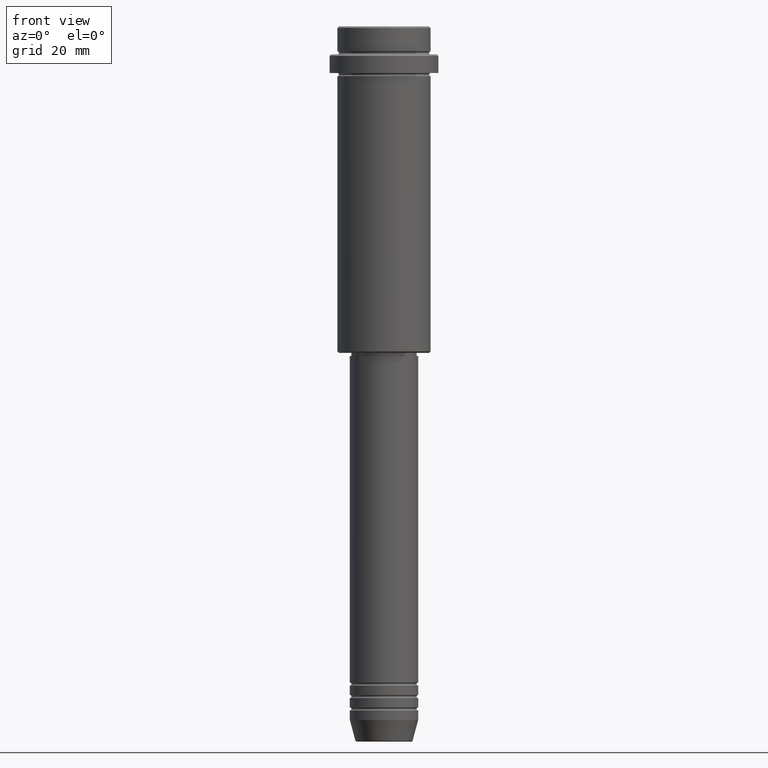
[diagram: clean part render]
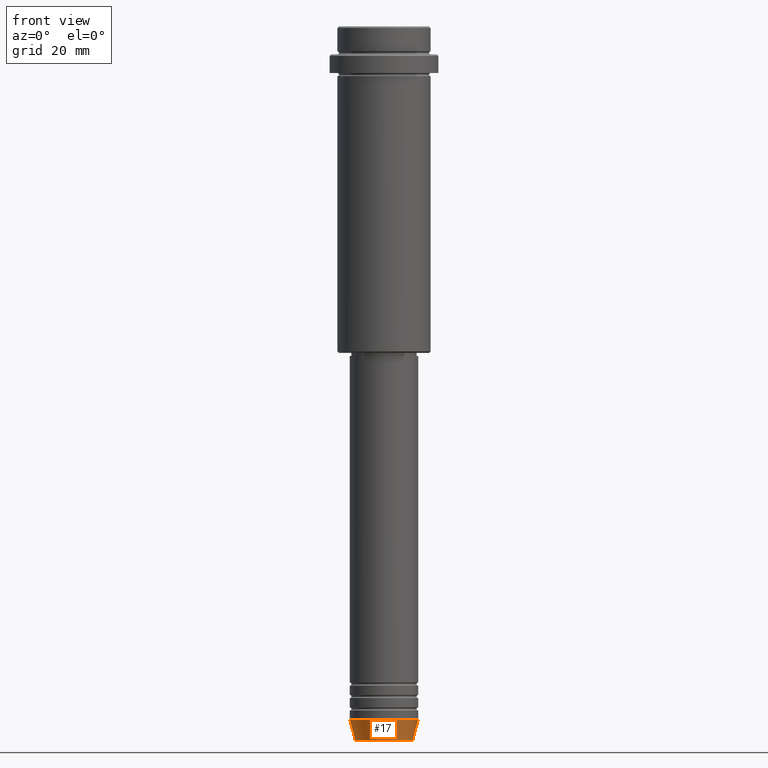
[diagram: same view with one face highlighted and labeled with its STEP entity id]
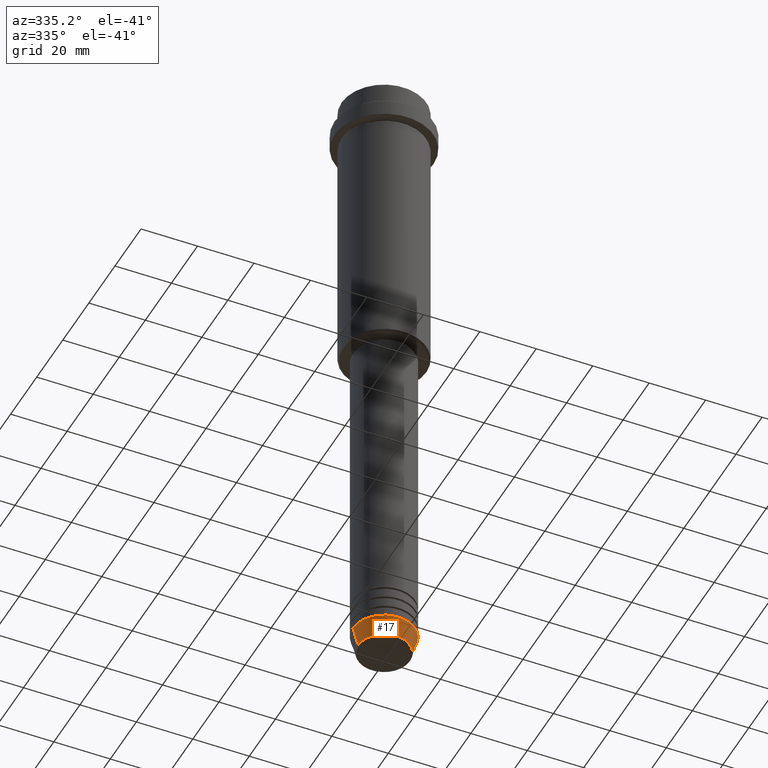
[diagram: same view with one face highlighted and labeled with its STEP entity id]
A machine part, front view. The second image highlights one B-rep face of the part: STEP entity #17.
A second angle (auxiliary view) of the same face is appended — the face is thin or edge-on in the first view.
In plain terms, the highlighted conical surface has half-angle 15 deg.
Its self-contained STEP definition (entity closure, byte-faithful):
#2 = DIRECTION ( 'NONE',  ( 1.000000000000000000, 0.000000000000000000, 0.000000000000000000 ) ) ;
#9 = VECTOR ( 'NONE', #148, 1000.000000000000000 ) ;
#17 = ADVANCED_FACE ( 'NONE', ( #1181 ), #319, .T. ) ;
#94 = DIRECTION ( 'NONE',  ( 1.000000000000000000, 0.000000000000000000, 0.000000000000000000 ) ) ;
#148 = DIRECTION ( 'NONE',  ( 0.2588190451025213501, 0.000000000000000000, 0.9659258262890680902 ) ) ;
#167 = AXIS2_PLACEMENT_3D ( 'NONE', #1331, #897, #560 ) ;
#173 = CARTESIAN_POINT ( 'NONE',  ( 9.223655072137189492, 0.000000000000000000, -229.6294095225512422 ) ) ;
#202 = CARTESIAN_POINT ( 'NONE',  ( -11.00000000000000000, 1.347111479062088405E-15, -222.9999999999999716 ) ) ;
#204 = CARTESIAN_POINT ( 'NONE',  ( 0.000000000000000000, 0.000000000000000000, -222.9999999999999716 ) ) ;
#319 = CONICAL_SURFACE ( 'NONE', #412, 11.00000000000000000, 0.2617993877991500740 ) ;
#378 = AXIS2_PLACEMENT_3D ( 'NONE', #1182, #536, #2 ) ;
#412 = AXIS2_PLACEMENT_3D ( 'NONE', #204, #416, #94 ) ;
#416 = DIRECTION ( 'NONE',  ( -0.000000000000000000, -0.000000000000000000, 1.000000000000000000 ) ) ;
#467 = EDGE_LOOP ( 'NONE', ( #1154, #829, #1163, #557 ) ) ;
#519 = EDGE_CURVE ( 'NONE', #715, #1066, #950, .T. ) ;
#523 = CARTESIAN_POINT ( 'NONE',  ( -11.00000000000000000, 1.347111479062088405E-15, -222.9999999999999716 ) ) ;
#536 = DIRECTION ( 'NONE',  ( -0.000000000000000000, -0.000000000000000000, 1.000000000000000000 ) ) ;
#557 = ORIENTED_EDGE ( 'NONE', *, *, #1401, .F. ) ;
#560 = DIRECTION ( 'NONE',  ( 1.000000000000000000, 0.000000000000000000, 0.000000000000000000 ) ) ;
#564 = EDGE_CURVE ( 'NONE', #715, #951, #861, .T. ) ;
#611 = DIRECTION ( 'NONE',  ( -0.2588190451025213501, 3.169619151431772337E-17, 0.9659258262890680902 ) ) ;
#708 = CARTESIAN_POINT ( 'NONE',  ( -9.223655072137189492, 1.238341722557647202E-15, -229.6294095225512422 ) ) ;
#715 = VERTEX_POINT ( 'NONE', #708 ) ;
#796 = EDGE_CURVE ( 'NONE', #951, #1356, #1355, .T. ) ;
#805 = CARTESIAN_POINT ( 'NONE',  ( 11.00000000000000000, 0.000000000000000000, -222.9999999999999716 ) ) ;
#829 = ORIENTED_EDGE ( 'NONE', *, *, #564, .T. ) ;
#861 = CIRCLE ( 'NONE', #167, 9.223655072137189492 ) ;
#897 = DIRECTION ( 'NONE',  ( -0.000000000000000000, -0.000000000000000000, 1.000000000000000000 ) ) ;
#935 = CIRCLE ( 'NONE', #378, 11.00000000000000000 ) ;
#950 = LINE ( 'NONE', #523, #1110 ) ;
#951 = VERTEX_POINT ( 'NONE', #173 ) ;
#1066 = VERTEX_POINT ( 'NONE', #202 ) ;
#1110 = VECTOR ( 'NONE', #611, 1000.000000000000000 ) ;
#1154 = ORIENTED_EDGE ( 'NONE', *, *, #519, .F. ) ;
#1163 = ORIENTED_EDGE ( 'NONE', *, *, #796, .T. ) ;
#1181 = FACE_OUTER_BOUND ( 'NONE', #467, .T. ) ;
#1182 = CARTESIAN_POINT ( 'NONE',  ( 0.000000000000000000, 0.000000000000000000, -222.9999999999999716 ) ) ;
#1331 = CARTESIAN_POINT ( 'NONE',  ( 0.000000000000000000, 0.000000000000000000, -229.6294095225512422 ) ) ;
#1355 = LINE ( 'NONE', #805, #9 ) ;
#1356 = VERTEX_POINT ( 'NONE', #1377 ) ;
#1377 = CARTESIAN_POINT ( 'NONE',  ( 11.00000000000000000, 0.000000000000000000, -222.9999999999999716 ) ) ;
#1401 = EDGE_CURVE ( 'NONE', #1066, #1356, #935, .T. ) ;